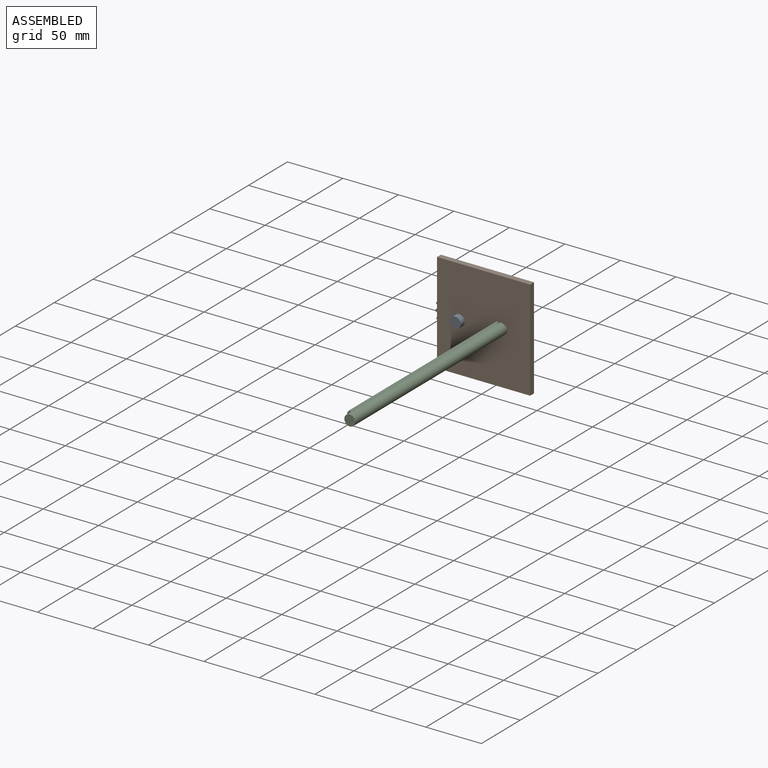
[diagram: assembled view]
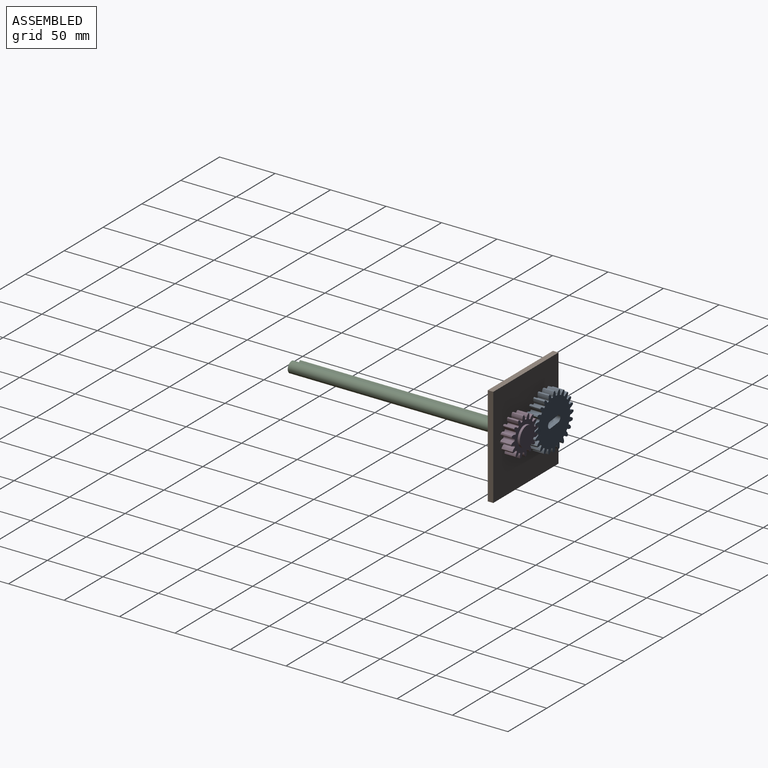
[diagram: assembled view, second angle]
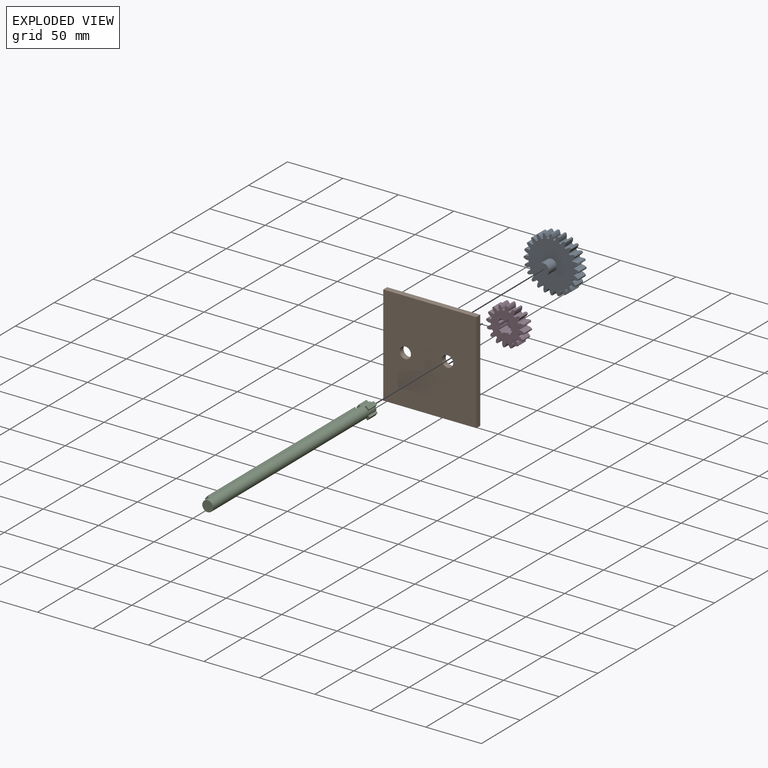
[diagram: exploded view]
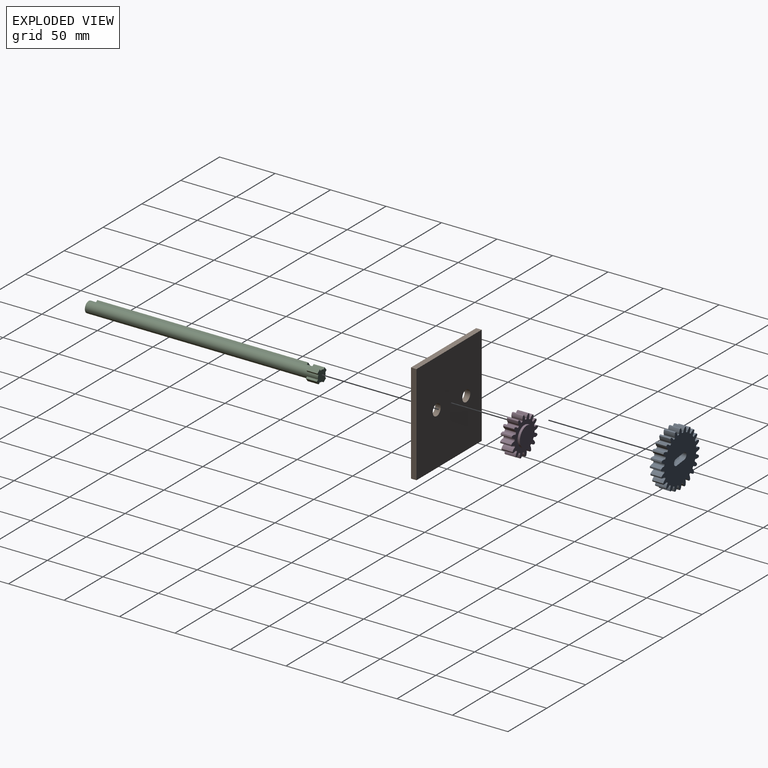
[diagram: exploded view, second angle]
ASSEMBLY  parts=4 mates=3
PART A: 153 faces, bbox 49.4x20x49.4 mm
  f0: plane 49.41x49.41mm, normal (0,1,0), area 1535.9mm2, adj f1,f2,f3,f4,f5,f6,f7,f8
  f1: cylinder r=24.83mm len=10mm, axis (0,1,0), area 13.7mm2, adj f0,f24,f121,f143
  f2: cylinder r=24.83mm len=10mm, axis (0,1,0), area 13.7mm2, adj f0,f24,f138,f141
  f3: cylinder r=24.83mm len=10mm, axis (0,1,0), area 13.7mm2, adj f0,f24,f126,f133
  f4: cylinder r=24.83mm len=10mm, axis (0,1,0), area 13.7mm2, adj f0,f24,f128,f136
  f5: cylinder r=24.83mm len=10mm, axis (0,1,0), area 13.7mm2, adj f0,f24,f116,f123
  f6: cylinder r=24.83mm len=10mm, axis (0,1,0), area 13.7mm2, adj f0,f24,f106,f118
  f7: cylinder r=24.83mm len=10mm, axis (0,1,0), area 13.7mm2, adj f0,f24,f101,f113
  f8: cylinder r=24.83mm len=10mm, axis (0,1,0), area 13.7mm2, adj f0,f24,f108,f111
  f9: cylinder r=24.83mm len=10mm, axis (0,1,0), area 13.7mm2, adj f0,f24,f96,f103
  f10: cylinder r=24.83mm len=10mm, axis (0,1,0), area 13.7mm2, adj f0,f24,f91,f98
  f11: cylinder r=24.83mm len=10mm, axis (0,1,0), area 13.7mm2, adj f0,f24,f86,f93
  f12: cylinder r=24.83mm len=10mm, axis (0,1,0), area 13.7mm2, adj f0,f24,f71,f88
  f13: cylinder r=24.83mm len=10mm, axis (0,1,0), area 13.7mm2, adj f0,f24,f26,f83
  f14: cylinder r=24.83mm len=10mm, axis (0,1,0), area 13.7mm2, adj f0,f24,f78,f81
  f15: cylinder r=24.83mm len=10mm, axis (0,1,0), area 13.7mm2, adj f0,f24,f66,f73
  f16: cylinder r=24.83mm len=10mm, axis (0,1,0), area 13.7mm2, adj f0,f24,f68,f76
  f17: cylinder r=24.83mm len=10mm, axis (0,1,0), area 13.7mm2, adj f0,f24,f51,f63
  f18: cylinder r=24.83mm len=10mm, axis (0,1,0), area 13.7mm2, adj f0,f24,f46,f58
  f19: cylinder r=24.83mm len=10mm, axis (0,1,0), area 13.7mm2, adj f0,f24,f53,f56
  f20: cylinder r=24.83mm len=10mm, axis (0,1,0), area 13.7mm2, adj f0,f24,f41,f48
  f21: cylinder r=24.83mm len=10mm, axis (0,1,0), area 13.7mm2, adj f0,f24,f36,f43
  f22: cylinder r=24.83mm len=10mm, axis (0,1,0), area 13.7mm2, adj f0,f24,f31,f38
  f23: cylinder r=24.83mm len=10mm, axis (0,1,0), area 13.7mm2, adj f0,f24,f33,f131
  f24: plane 49.41x49.41mm, normal (0,-1,0), area 1545.6mm2, adj f1,f2,f3,f4,f5,f6,f7,f8
  f25: cylinder r=24.83mm len=10mm, axis (0,1,0), area 13.7mm2, adj f0,f24,f28,f61
  f26: extruded ~10x3.48mm, area 38.1mm2, adj f0,f13,f24,f29
  f27: cylinder r=20.53mm len=10mm, axis (0,1,0), area 6.7mm2, adj f0,f24,f29,f30
  f28: extruded ~10x3.48mm, area 38.1mm2, adj f0,f24,f25,f30
  f29: cylinder r=0.73mm len=10mm, axis (0,1,0), area 11.2mm2, adj f0,f24,f26,f27
  f30: cylinder r=0.73mm len=10mm, axis (0,1,0), area 11.2mm2, adj f0,f24,f27,f28
  f31: extruded ~10x3.74mm, area 38.1mm2, adj f0,f22,f24,f34
  f32: cylinder r=20.53mm len=10mm, axis (0,1,0), area 6.7mm2, adj f0,f24,f34,f35
  f33: extruded ~10x2.97mm, area 38.1mm2, adj f0,f23,f24,f35
  f34: cylinder r=0.73mm len=10mm, axis (0,1,0), area 11.2mm2, adj f0,f24,f31,f32
  f35: cylinder r=0.73mm len=10mm, axis (0,1,0), area 11.2mm2, adj f0,f24,f32,f33
  f36: extruded ~10x3.48mm, area 38.1mm2, adj f0,f21,f24,f39
  f37: cylinder r=20.53mm len=10mm, axis (0,1,0), area 6.7mm2, adj f0,f24,f39,f40
  f38: extruded ~10x3.48mm, area 38.1mm2, adj f0,f22,f24,f40
  f39: cylinder r=0.73mm len=10mm, axis (0,1,0), area 11.2mm2, adj f0,f24,f36,f37
  f40: cylinder r=0.73mm len=10mm, axis (0,1,0), area 11.2mm2, adj f0,f24,f37,f38
  f41: extruded ~10x2.97mm, area 38.1mm2, adj f0,f20,f24,f44
  f42: cylinder r=20.53mm len=10mm, axis (0,1,0), area 6.7mm2, adj f0,f24,f44,f45
  f43: extruded ~10x3.74mm, area 38.1mm2, adj f0,f21,f24,f45
  f44: cylinder r=0.73mm len=10mm, axis (0,1,0), area 11.2mm2, adj f0,f24,f41,f42
  f45: cylinder r=0.73mm len=10mm, axis (0,1,0), area 11.2mm2, adj f0,f24,f42,f43
  f46: extruded ~10x3.03mm, area 38.1mm2, adj f0,f18,f24,f49
  f47: cylinder r=20.53mm len=10mm, axis (0,1,0), area 6.7mm2, adj f0,f24,f49,f50
  f48: extruded ~10x3.75mm, area 38.1mm2, adj f0,f20,f24,f50
  f49: cylinder r=0.73mm len=10mm, axis (0,1,0), area 11.2mm2, adj f0,f24,f46,f47
  f50: cylinder r=0.73mm len=10mm, axis (0,1,0), area 11.2mm2, adj f0,f24,f47,f48
  f51: extruded ~10x3.75mm, area 38.1mm2, adj f0,f17,f24,f54
  f52: cylinder r=20.53mm len=10mm, axis (0,1,0), area 6.7mm2, adj f0,f24,f54,f55
  f53: extruded ~10x3.03mm, area 38.1mm2, adj f0,f19,f24,f55
  f54: cylinder r=0.73mm len=10mm, axis (0,1,0), area 11.2mm2, adj f0,f24,f51,f52
  f55: cylinder r=0.73mm len=10mm, axis (0,1,0), area 11.2mm2, adj f0,f24,f52,f53
  f56: extruded ~10x3.51mm, area 38.1mm2, adj f0,f19,f24,f59
  f57: cylinder r=20.53mm len=10mm, axis (0,1,0), area 6.7mm2, adj f0,f24,f59,f60
  f58: extruded ~10x3.51mm, area 38.1mm2, adj f0,f18,f24,f60
  f59: cylinder r=0.73mm len=10mm, axis (0,1,0), area 11.2mm2, adj f0,f24,f56,f57
  f60: cylinder r=0.73mm len=10mm, axis (0,1,0), area 11.2mm2, adj f0,f24,f57,f58
  f61: extruded ~10x3.74mm, area 38.1mm2, adj f0,f24,f25,f64
  f62: cylinder r=20.53mm len=10mm, axis (0,1,0), area 6.7mm2, adj f0,f24,f64,f65
  f63: extruded ~10x2.97mm, area 38.1mm2, adj f0,f17,f24,f65
  f64: cylinder r=0.73mm len=10mm, axis (0,1,0), area 11.2mm2, adj f0,f24,f61,f62
  f65: cylinder r=0.73mm len=10mm, axis (0,1,0), area 11.2mm2, adj f0,f24,f62,f63
  f66: extruded ~10x3.51mm, area 38.1mm2, adj f0,f15,f24,f69
  f67: cylinder r=20.53mm len=10mm, axis (0,1,0), area 6.7mm2, adj f0,f24,f69,f70
  f68: extruded ~10x3.51mm, area 38.1mm2, adj f0,f16,f24,f70
  f69: cylinder r=0.73mm len=10mm, axis (0,1,0), area 11.2mm2, adj f0,f24,f66,f67
  f70: cylinder r=0.73mm len=10mm, axis (0,1,0), area 11.2mm2, adj f0,f24,f67,f68
  f71: extruded ~10x3.75mm, area 38.1mm2, adj f0,f12,f24,f74
  f72: cylinder r=20.53mm len=10mm, axis (0,1,0), area 6.7mm2, adj f0,f24,f74,f75
  f73: extruded ~10x3.03mm, area 38.1mm2, adj f0,f15,f24,f75
  f74: cylinder r=0.73mm len=10mm, axis (0,1,0), area 11.2mm2, adj f0,f24,f71,f72
  f75: cylinder r=0.73mm len=10mm, axis (0,1,0), area 11.2mm2, adj f0,f24,f72,f73
  f76: extruded ~10x3.03mm, area 38.1mm2, adj f0,f16,f24,f79
  f77: cylinder r=20.53mm len=10mm, axis (0,1,0), area 6.7mm2, adj f0,f24,f79,f80
  f78: extruded ~10x3.75mm, area 38.1mm2, adj f0,f14,f24,f80
  f79: cylinder r=0.73mm len=10mm, axis (0,1,0), area 11.2mm2, adj f0,f24,f76,f77
  f80: cylinder r=0.73mm len=10mm, axis (0,1,0), area 11.2mm2, adj f0,f24,f77,f78
  f81: extruded ~10x2.97mm, area 38.1mm2, adj f0,f14,f24,f84
  f82: cylinder r=20.53mm len=10mm, axis (0,1,0), area 6.7mm2, adj f0,f24,f84,f85
  f83: extruded ~10x3.74mm, area 38.1mm2, adj f0,f13,f24,f85
  f84: cylinder r=0.73mm len=10mm, axis (0,1,0), area 11.2mm2, adj f0,f24,f81,f82
  f85: cylinder r=0.73mm len=10mm, axis (0,1,0), area 11.2mm2, adj f0,f24,f82,f83
  f86: extruded ~10x3.74mm, area 38.1mm2, adj f0,f11,f24,f89
  f87: cylinder r=20.53mm len=10mm, axis (0,1,0), area 6.7mm2, adj f0,f24,f89,f90
  f88: extruded ~10x2.97mm, area 38.1mm2, adj f0,f12,f24,f90
  f89: cylinder r=0.73mm len=10mm, axis (0,1,0), area 11.2mm2, adj f0,f24,f86,f87
  f90: cylinder r=0.73mm len=10mm, axis (0,1,0), area 11.2mm2, adj f0,f24,f87,f88
  f91: extruded ~10x3.48mm, area 38.1mm2, adj f0,f10,f24,f94
  f92: cylinder r=20.53mm len=10mm, axis (0,1,0), area 6.7mm2, adj f0,f24,f94,f95
  f93: extruded ~10x3.48mm, area 38.1mm2, adj f0,f11,f24,f95
  f94: cylinder r=0.73mm len=10mm, axis (0,1,0), area 11.2mm2, adj f0,f24,f91,f92
  f95: cylinder r=0.73mm len=10mm, axis (0,1,0), area 11.2mm2, adj f0,f24,f92,f93
  f96: extruded ~10x2.97mm, area 38.1mm2, adj f0,f9,f24,f99
  f97: cylinder r=20.53mm len=10mm, axis (0,1,0), area 6.7mm2, adj f0,f24,f99,f100
  f98: extruded ~10x3.74mm, area 38.1mm2, adj f0,f10,f24,f100
  f99: cylinder r=0.73mm len=10mm, axis (0,1,0), area 11.2mm2, adj f0,f24,f96,f97
  f100: cylinder r=0.73mm len=10mm, axis (0,1,0), area 11.2mm2, adj f0,f24,f97,f98
  f101: extruded ~10x3.03mm, area 38.1mm2, adj f0,f7,f24,f104
  f102: cylinder r=20.53mm len=10mm, axis (0,1,0), area 6.7mm2, adj f0,f24,f104,f105
  f103: extruded ~10x3.75mm, area 38.1mm2, adj f0,f9,f24,f105
  f104: cylinder r=0.73mm len=10mm, axis (0,1,0), area 11.2mm2, adj f0,f24,f101,f102
  f105: cylinder r=0.73mm len=10mm, axis (0,1,0), area 11.2mm2, adj f0,f24,f102,f103
  f106: extruded ~10x3.75mm, area 38.1mm2, adj f0,f6,f24,f109
  f107: cylinder r=20.53mm len=10mm, axis (0,1,0), area 6.7mm2, adj f0,f24,f109,f110
  f108: extruded ~10x3.03mm, area 38.1mm2, adj f0,f8,f24,f110
  f109: cylinder r=0.73mm len=10mm, axis (0,1,0), area 11.2mm2, adj f0,f24,f106,f107
  f110: cylinder r=0.73mm len=10mm, axis (0,1,0), area 11.2mm2, adj f0,f24,f107,f108
  f111: extruded ~10x3.51mm, area 38.1mm2, adj f0,f8,f24,f114
  f112: cylinder r=20.53mm len=10mm, axis (0,1,0), area 6.7mm2, adj f0,f24,f114,f115
  f113: extruded ~10x3.51mm, area 38.1mm2, adj f0,f7,f24,f115
  f114: cylinder r=0.73mm len=10mm, axis (0,1,0), area 11.2mm2, adj f0,f24,f111,f112
  f115: cylinder r=0.73mm len=10mm, axis (0,1,0), area 11.2mm2, adj f0,f24,f112,f113
  f116: extruded ~10x3.74mm, area 38.1mm2, adj f0,f5,f24,f119
  f117: cylinder r=20.53mm len=10mm, axis (0,1,0), area 6.7mm2, adj f0,f24,f119,f120
  f118: extruded ~10x2.97mm, area 38.1mm2, adj f0,f6,f24,f120
  f119: cylinder r=0.73mm len=10mm, axis (0,1,0), area 11.2mm2, adj f0,f24,f116,f117
  f120: cylinder r=0.73mm len=10mm, axis (0,1,0), area 11.2mm2, adj f0,f24,f117,f118
  f121: extruded ~10x3.48mm, area 38.1mm2, adj f0,f1,f24,f124
  f122: cylinder r=20.53mm len=10mm, axis (0,1,0), area 6.7mm2, adj f0,f24,f124,f125
  f123: extruded ~10x3.48mm, area 38.1mm2, adj f0,f5,f24,f125
  f124: cylinder r=0.73mm len=10mm, axis (0,1,0), area 11.2mm2, adj f0,f24,f121,f122
  f125: cylinder r=0.73mm len=10mm, axis (0,1,0), area 11.2mm2, adj f0,f24,f122,f123
  f126: extruded ~10x3.51mm, area 38.1mm2, adj f0,f3,f24,f129
  f127: cylinder r=20.53mm len=10mm, axis (0,1,0), area 6.7mm2, adj f0,f24,f129,f130
  f128: extruded ~10x3.51mm, area 38.1mm2, adj f0,f4,f24,f130
  f129: cylinder r=0.73mm len=10mm, axis (0,1,0), area 11.2mm2, adj f0,f24,f126,f127
  f130: cylinder r=0.73mm len=10mm, axis (0,1,0), area 11.2mm2, adj f0,f24,f127,f128
  f131: extruded ~10x3.75mm, area 38.1mm2, adj f0,f23,f24,f134
  f132: cylinder r=20.53mm len=10mm, axis (0,1,0), area 6.7mm2, adj f0,f24,f134,f135
  f133: extruded ~10x3.03mm, area 38.1mm2, adj f0,f3,f24,f135
  f134: cylinder r=0.73mm len=10mm, axis (0,1,0), area 11.2mm2, adj f0,f24,f131,f132
  f135: cylinder r=0.73mm len=10mm, axis (0,1,0), area 11.2mm2, adj f0,f24,f132,f133
  f136: extruded ~10x3.03mm, area 38.1mm2, adj f0,f4,f24,f139
  f137: cylinder r=20.53mm len=10mm, axis (0,1,0), area 6.7mm2, adj f0,f24,f139,f140
  f138: extruded ~10x3.75mm, area 38.1mm2, adj f0,f2,f24,f140
  f139: cylinder r=0.73mm len=10mm, axis (0,1,0), area 11.2mm2, adj f0,f24,f136,f137
  f140: cylinder r=0.73mm len=10mm, axis (0,1,0), area 11.2mm2, adj f0,f24,f137,f138
  f141: extruded ~10x2.97mm, area 38.1mm2, adj f0,f2,f24,f144
  f142: cylinder r=20.53mm len=10mm, axis (0,1,0), area 6.7mm2, adj f0,f24,f144,f145
  f143: extruded ~10x3.74mm, area 38.1mm2, adj f0,f1,f24,f145
  f144: cylinder r=0.73mm len=10mm, axis (0,1,0), area 11.2mm2, adj f0,f24,f141,f142
  f145: cylinder r=0.73mm len=10mm, axis (0,1,0), area 11.2mm2, adj f0,f24,f142,f143
  f146: cylinder r=5mm len=10mm, axis (0,1,0), area 314.2mm2, adj f24,f147
  f147: plane 10x10mm, normal (0,-1,0), area 78.5mm2, adj f146
  f148: plane 8x7.07mm, normal (-0.71,0,-0.71), area 80mm2, adj f0,f149,f151,f152
  f149: cylinder r=3mm len=8mm, axis (0,1,0), area 75.4mm2, adj f0,f148,f150,f152
  f150: plane 8x7.07mm, normal (0.71,0,0.71), area 80mm2, adj f0,f149,f151,f152
  f151: cylinder r=3mm len=8mm, axis (0,1,0), area 75.4mm2, adj f0,f148,f150,f152
  f152: plane 13.07x13.07mm, normal (0,1,0), area 88.3mm2, adj f148,f149,f150,f151
PART B: 8 faces, bbox 84x5x90.5 mm
  f0: plane 83.95x5mm, normal (0,0,1), area 419.8mm2, adj f1,f5,f6,f7
  f1: plane 90.49x5mm, normal (-1,0,0), area 452.4mm2, adj f0,f2,f6,f7
  f2: plane 83.95x5mm, normal (0,0,-1), area 419.8mm2, adj f1,f5,f6,f7
  f3: cylinder r=5.1mm len=10.2mm, axis (0,1,0), area 160.2mm2, adj f6,f7
  f4: cylinder r=5.1mm len=10.2mm, axis (0,1,0), area 160.2mm2, adj f6,f7
  f5: plane 90.49x5mm, normal (1,0,0), area 452.4mm2, adj f0,f2,f6,f7
  f6: plane 90.49x83.95mm, normal (0,-1,0), area 7433.3mm2, adj f0,f1,f2,f3,f4,f5
  f7: plane 90.49x83.95mm, normal (0,1,0), area 7433.3mm2, adj f0,f1,f2,f3,f4,f5
PART C: 24 faces, bbox 210x12.8x12.8 mm
  f0: cylinder r=4.9mm len=210mm, axis (-1,0,0), area 5567.9mm2, adj f1,f2,f3,f4,f6,f7,f8,f10
  f1: plane 12.8x12.8mm, normal (1,0,0), area 100.1mm2, adj f0,f8,f9,f10,f12,f13,f14,f16
  f2: plane 9.8x9.8mm, normal (-1,0,0), area 75.4mm2, adj f0
  f3: plane 190x1.88mm, normal (0,-1,0), area 357.8mm2, adj f0,f5,f6,f7
  f4: plane 190x1.88mm, normal (0,1,0), area 357.8mm2, adj f0,f5,f6,f7
  f5: plane 190x3.8mm, normal (0,0,1), area 722mm2, adj f3,f4,f6,f7
  f6: plane 3.8x1.88mm, normal (1,0,0), area 6.2mm2, adj f0,f3,f4,f5
  f7: plane 3.8x1.88mm, normal (-1,0,0), area 6.2mm2, adj f0,f3,f4,f5
  f8: plane 10x1.88mm, normal (0,1,0), area 18.8mm2, adj f0,f1,f9,f11
  f9: plane 10x3.8mm, normal (0,0,1), area 38mm2, adj f1,f8,f10,f11
  f10: plane 10x1.88mm, normal (0,-1,0), area 18.8mm2, adj f0,f1,f9,f11
  f11: plane 3.8x1.88mm, normal (-1,0,0), area 6.2mm2, adj f0,f8,f9,f10
  f12: plane 10x1.88mm, normal (0,0,-1), area 18.8mm2, adj f0,f1,f13,f15
  f13: plane 10x3.8mm, normal (0,1,0), area 38mm2, adj f1,f12,f14,f15
  f14: plane 10x1.88mm, normal (0,0,1), area 18.8mm2, adj f0,f1,f13,f15
  f15: plane 3.8x1.88mm, normal (-1,0,0), area 6.2mm2, adj f0,f12,f13,f14
  f16: plane 10x3.8mm, normal (0,0,-1), area 38mm2, adj f1,f17,f18,f19
  f17: plane 10x1.88mm, normal (0,1,0), area 18.8mm2, adj f0,f1,f16,f19
  f18: plane 10x1.88mm, normal (0,-1,0), area 18.8mm2, adj f0,f1,f16,f19
  f19: plane 3.8x1.88mm, normal (-1,0,0), area 6.2mm2, adj f0,f16,f17,f18
  f20: plane 10x1.88mm, normal (0,0,-1), area 18.8mm2, adj f0,f1,f22,f23
  f21: plane 10x1.88mm, normal (0,0,1), area 18.8mm2, adj f0,f1,f22,f23
  f22: plane 10x3.8mm, normal (0,-1,0), area 38mm2, adj f1,f20,f21,f23
  f23: plane 3.8x1.88mm, normal (-1,0,0), area 6.2mm2, adj f0,f20,f21,f22
PART D: 117 faces, bbox 34x12x34 mm
  f0: plane 33.97x33.97mm, normal (0,-1,0), area 459.2mm2, adj f2,f3,f4,f5,f6,f7,f8,f9
  f1: plane 33.97x33.97mm, normal (0,1,0), area 608.9mm2, adj f2,f3,f4,f5,f6,f7,f8,f9
  f2: cylinder r=17.19mm len=10mm, axis (0,1,0), area 12.7mm2, adj f0,f1,f88,f95
  f3: cylinder r=17.19mm len=10mm, axis (0,1,0), area 12.7mm2, adj f0,f1,f63,f90
  f4: cylinder r=17.19mm len=10mm, axis (0,1,0), area 12.7mm2, adj f0,f1,f85,f93
  f5: cylinder r=17.19mm len=10mm, axis (0,1,0), area 12.7mm2, adj f0,f1,f73,f80
  f6: cylinder r=17.19mm len=10mm, axis (0,1,0), area 12.7mm2, adj f0,f1,f43,f75
  f7: cylinder r=17.19mm len=10mm, axis (0,1,0), area 12.7mm2, adj f0,f1,f70,f78
  f8: cylinder r=17.19mm len=10mm, axis (0,1,0), area 12.7mm2, adj f0,f1,f65,f68
  f9: cylinder r=17.19mm len=10mm, axis (0,1,0), area 12.7mm2, adj f0,f1,f53,f60
  f10: cylinder r=17.19mm len=10mm, axis (0,1,0), area 12.7mm2, adj f0,f1,f23,f55
  f11: cylinder r=17.19mm len=10mm, axis (0,1,0), area 12.7mm2, adj f0,f1,f50,f58
  f12: cylinder r=17.19mm len=10mm, axis (0,1,0), area 12.7mm2, adj f0,f1,f45,f48
  f13: cylinder r=17.19mm len=10mm, axis (0,1,0), area 12.7mm2, adj f0,f1,f33,f40
  f14: cylinder r=17.19mm len=10mm, axis (0,1,0), area 12.7mm2, adj f0,f1,f18,f35
  f15: cylinder r=17.19mm len=10mm, axis (0,1,0), area 12.7mm2, adj f0,f1,f30,f38
  f16: cylinder r=17.19mm len=10mm, axis (0,1,0), area 12.7mm2, adj f0,f1,f25,f28
  f17: cylinder r=17.19mm len=10mm, axis (0,1,0), area 12.7mm2, adj f0,f1,f20,f83
  f18: extruded ~10x3.37mm, area 38.5mm2, adj f0,f1,f14,f21
  f19: cylinder r=12.89mm len=10mm, axis (0,1,0), area 6.8mm2, adj f0,f1,f21,f22
  f20: extruded ~10x3.37mm, area 38.5mm2, adj f0,f1,f17,f22
  f21: cylinder r=0.78mm len=10mm, axis (0,1,0), area 11.8mm2, adj f0,f1,f18,f19
  f22: cylinder r=0.78mm len=10mm, axis (0,1,0), area 11.8mm2, adj f0,f1,f19,f20
  f23: extruded ~10x3.37mm, area 38.5mm2, adj f0,f1,f10,f26
  f24: cylinder r=12.89mm len=10mm, axis (0,1,0), area 6.8mm2, adj f0,f1,f26,f27
  f25: extruded ~10x3.37mm, area 38.5mm2, adj f0,f1,f16,f27
  f26: cylinder r=0.78mm len=10mm, axis (0,1,0), area 11.8mm2, adj f0,f1,f23,f24
  f27: cylinder r=0.78mm len=10mm, axis (0,1,0), area 11.8mm2, adj f0,f1,f24,f25
  f28: extruded ~10x3.72mm, area 38.5mm2, adj f0,f1,f16,f31
  f29: cylinder r=12.89mm len=10mm, axis (0,1,0), area 6.8mm2, adj f0,f1,f31,f32
  f30: extruded ~10x2.76mm, area 38.5mm2, adj f0,f1,f15,f32
  f31: cylinder r=0.78mm len=10mm, axis (0,1,0), area 11.8mm2, adj f0,f1,f28,f29
  f32: cylinder r=0.78mm len=10mm, axis (0,1,0), area 11.8mm2, adj f0,f1,f29,f30
  f33: extruded ~10x2.76mm, area 38.5mm2, adj f0,f1,f13,f36
  f34: cylinder r=12.89mm len=10mm, axis (0,1,0), area 6.8mm2, adj f0,f1,f36,f37
  f35: extruded ~10x3.72mm, area 38.5mm2, adj f0,f1,f14,f37
  f36: cylinder r=0.78mm len=10mm, axis (0,1,0), area 11.8mm2, adj f0,f1,f33,f34
  f37: cylinder r=0.78mm len=10mm, axis (0,1,0), area 11.8mm2, adj f0,f1,f34,f35
  f38: extruded ~10x3.51mm, area 38.5mm2, adj f0,f1,f15,f41
  f39: cylinder r=12.89mm len=10mm, axis (0,1,0), area 6.8mm2, adj f0,f1,f41,f42
  f40: extruded ~10x3.51mm, area 38.5mm2, adj f0,f1,f13,f42
  f41: cylinder r=0.78mm len=10mm, axis (0,1,0), area 11.8mm2, adj f0,f1,f38,f39
  f42: cylinder r=0.78mm len=10mm, axis (0,1,0), area 11.8mm2, adj f0,f1,f39,f40
  f43: extruded ~10x3.37mm, area 38.5mm2, adj f0,f1,f6,f46
  f44: cylinder r=12.89mm len=10mm, axis (0,1,0), area 6.8mm2, adj f0,f1,f46,f47
  f45: extruded ~10x3.37mm, area 38.5mm2, adj f0,f1,f12,f47
  f46: cylinder r=0.78mm len=10mm, axis (0,1,0), area 11.8mm2, adj f0,f1,f43,f44
  f47: cylinder r=0.78mm len=10mm, axis (0,1,0), area 11.8mm2, adj f0,f1,f44,f45
  f48: extruded ~10x3.72mm, area 38.5mm2, adj f0,f1,f12,f51
  f49: cylinder r=12.89mm len=10mm, axis (0,1,0), area 6.8mm2, adj f0,f1,f51,f52
  f50: extruded ~10x2.76mm, area 38.5mm2, adj f0,f1,f11,f52
  f51: cylinder r=0.78mm len=10mm, axis (0,1,0), area 11.8mm2, adj f0,f1,f48,f49
  f52: cylinder r=0.78mm len=10mm, axis (0,1,0), area 11.8mm2, adj f0,f1,f49,f50
  f53: extruded ~10x2.76mm, area 38.5mm2, adj f0,f1,f9,f56
  f54: cylinder r=12.89mm len=10mm, axis (0,1,0), area 6.8mm2, adj f0,f1,f56,f57
  f55: extruded ~10x3.72mm, area 38.5mm2, adj f0,f1,f10,f57
  f56: cylinder r=0.78mm len=10mm, axis (0,1,0), area 11.8mm2, adj f0,f1,f53,f54
  f57: cylinder r=0.78mm len=10mm, axis (0,1,0), area 11.8mm2, adj f0,f1,f54,f55
  f58: extruded ~10x3.51mm, area 38.5mm2, adj f0,f1,f11,f61
  f59: cylinder r=12.89mm len=10mm, axis (0,1,0), area 6.8mm2, adj f0,f1,f61,f62
  f60: extruded ~10x3.51mm, area 38.5mm2, adj f0,f1,f9,f62
  f61: cylinder r=0.78mm len=10mm, axis (0,1,0), area 11.8mm2, adj f0,f1,f58,f59
  f62: cylinder r=0.78mm len=10mm, axis (0,1,0), area 11.8mm2, adj f0,f1,f59,f60
  f63: extruded ~10x3.37mm, area 38.5mm2, adj f0,f1,f3,f66
  f64: cylinder r=12.89mm len=10mm, axis (0,1,0), area 6.8mm2, adj f0,f1,f66,f67
  f65: extruded ~10x3.37mm, area 38.5mm2, adj f0,f1,f8,f67
  f66: cylinder r=0.78mm len=10mm, axis (0,1,0), area 11.8mm2, adj f0,f1,f63,f64
  f67: cylinder r=0.78mm len=10mm, axis (0,1,0), area 11.8mm2, adj f0,f1,f64,f65
  f68: extruded ~10x3.72mm, area 38.5mm2, adj f0,f1,f8,f71
  f69: cylinder r=12.89mm len=10mm, axis (0,1,0), area 6.8mm2, adj f0,f1,f71,f72
  f70: extruded ~10x2.76mm, area 38.5mm2, adj f0,f1,f7,f72
  f71: cylinder r=0.78mm len=10mm, axis (0,1,0), area 11.8mm2, adj f0,f1,f68,f69
  f72: cylinder r=0.78mm len=10mm, axis (0,1,0), area 11.8mm2, adj f0,f1,f69,f70
  f73: extruded ~10x2.76mm, area 38.5mm2, adj f0,f1,f5,f76
  f74: cylinder r=12.89mm len=10mm, axis (0,1,0), area 6.8mm2, adj f0,f1,f76,f77
  f75: extruded ~10x3.72mm, area 38.5mm2, adj f0,f1,f6,f77
  f76: cylinder r=0.78mm len=10mm, axis (0,1,0), area 11.8mm2, adj f0,f1,f73,f74
  f77: cylinder r=0.78mm len=10mm, axis (0,1,0), area 11.8mm2, adj f0,f1,f74,f75
  f78: extruded ~10x3.51mm, area 38.5mm2, adj f0,f1,f7,f81
  f79: cylinder r=12.89mm len=10mm, axis (0,1,0), area 6.8mm2, adj f0,f1,f81,f82
  f80: extruded ~10x3.51mm, area 38.5mm2, adj f0,f1,f5,f82
  f81: cylinder r=0.78mm len=10mm, axis (0,1,0), area 11.8mm2, adj f0,f1,f78,f79
  f82: cylinder r=0.78mm len=10mm, axis (0,1,0), area 11.8mm2, adj f0,f1,f79,f80
  f83: extruded ~10x3.72mm, area 38.5mm2, adj f0,f1,f17,f86
  f84: cylinder r=12.89mm len=10mm, axis (0,1,0), area 6.8mm2, adj f0,f1,f86,f87
  f85: extruded ~10x2.76mm, area 38.5mm2, adj f0,f1,f4,f87
  f86: cylinder r=0.78mm len=10mm, axis (0,1,0), area 11.8mm2, adj f0,f1,f83,f84
  f87: cylinder r=0.78mm len=10mm, axis (0,1,0), area 11.8mm2, adj f0,f1,f84,f85
  f88: extruded ~10x2.76mm, area 38.5mm2, adj f0,f1,f2,f91
  f89: cylinder r=12.89mm len=10mm, axis (0,1,0), area 6.8mm2, adj f0,f1,f91,f92
  f90: extruded ~10x3.72mm, area 38.5mm2, adj f0,f1,f3,f92
  f91: cylinder r=0.78mm len=10mm, axis (0,1,0), area 11.8mm2, adj f0,f1,f88,f89
  f92: cylinder r=0.78mm len=10mm, axis (0,1,0), area 11.8mm2, adj f0,f1,f89,f90
  f93: extruded ~10x3.51mm, area 38.5mm2, adj f0,f1,f4,f96
  f94: cylinder r=12.89mm len=10mm, axis (0,1,0), area 6.8mm2, adj f0,f1,f96,f97
  f95: extruded ~10x3.51mm, area 38.5mm2, adj f0,f1,f2,f97
  f96: cylinder r=0.78mm len=10mm, axis (0,1,0), area 11.8mm2, adj f0,f1,f93,f94
  f97: cylinder r=0.78mm len=10mm, axis (0,1,0), area 11.8mm2, adj f0,f1,f94,f95
  f98: cylinder r=5mm len=10mm, axis (0,1,0), area 37.4mm2, adj f1,f99,f113,f114
  f99: plane 10x1.92mm, normal (0,0,1), area 19.2mm2, adj f1,f98,f100,f114
  f100: plane 10x4mm, normal (-1,0,0), area 40mm2, adj f1,f99,f101,f114
  f101: plane 10x1.92mm, normal (0,0,-1), area 19.2mm2, adj f1,f100,f102,f114
  f102: cylinder r=5mm len=10mm, axis (0,1,0), area 37.4mm2, adj f1,f101,f103,f114
  f103: plane 10x1.92mm, normal (-1,0,0), area 19.2mm2, adj f1,f102,f104,f114
  f104: plane 10x4mm, normal (0,0,-1), area 40mm2, adj f1,f103,f105,f114
  f105: plane 10x1.92mm, normal (1,0,0), area 19.2mm2, adj f1,f104,f106,f114
  f106: cylinder r=5mm len=10mm, axis (0,1,0), area 37.4mm2, adj f1,f105,f107,f114
  f107: plane 10x1.92mm, normal (0,0,-1), area 19.2mm2, adj f1,f106,f108,f114
  f108: plane 10x4mm, normal (1,0,0), area 40mm2, adj f1,f107,f109,f114
  f109: plane 10x1.92mm, normal (0,0,1), area 19.2mm2, adj f1,f108,f110,f114
  f110: cylinder r=5mm len=10mm, axis (0,1,0), area 37.4mm2, adj f1,f109,f111,f114
  f111: plane 10x1.92mm, normal (1,0,0), area 19.2mm2, adj f1,f110,f112,f114
  f112: plane 10x4mm, normal (0,0,1), area 40mm2, adj f1,f111,f113,f114
  f113: plane 10x1.92mm, normal (-1,0,0), area 19.2mm2, adj f1,f98,f112,f114
  f114: plane 13x13mm, normal (0,1,0), area 104.7mm2, adj f98,f99,f100,f101,f102,f103,f104,f105
  f115: cylinder r=9mm len=18mm, axis (0,1,0), area 113.1mm2, adj f0,f116
  f116: plane 18x18mm, normal (0,-1,0), area 254.5mm2, adj f115
PLACE A rot(axis=(0,1,0),141.8deg) t=(-28.45,26.71,10.82)mm
PLACE B t=(13.94,16.71,30.21)mm fixed
PLACE C rot(axis=(-0.4,-0.4,0.82),101deg) t=(9.62,-78.29,13.94)mm
PLACE D rot(axis=(0.94,0,-0.33),180deg) t=(9.62,16.71,13.94)mm
MATE revolute D.f110 <-> B.f4  axis (0,-1,0) through (9.62,16.71,13.94)mm
MATE fastened C.f0 <-> D.f102  axis (0,1,0) through (9.62,26.71,13.94)mm
MATE revolute A.f146 <-> B.f3  axis (0,1,0) through (-28.45,16.71,10.82)mm
